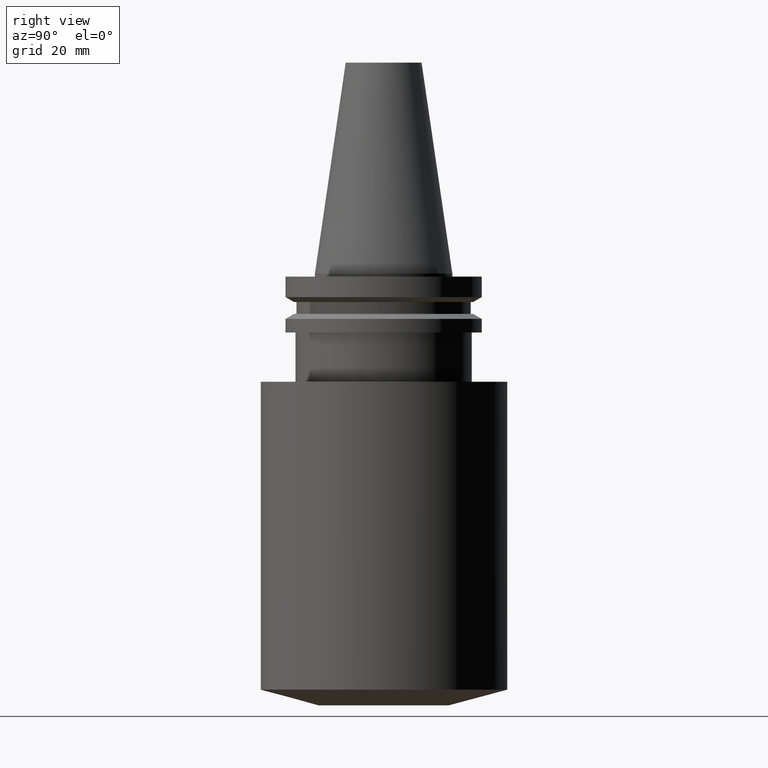
[diagram: clean part render]
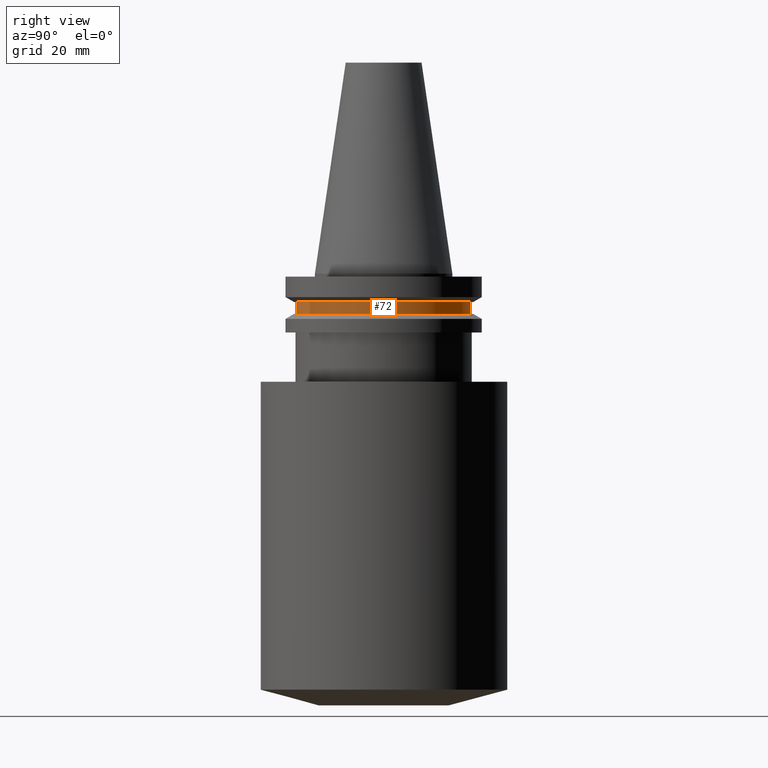
[diagram: same view with one face highlighted and labeled with its STEP entity id]
A machine part, right view. The second image highlights one B-rep face of the part: STEP entity #72.
In plain terms, the highlighted cylindrical surface (bore or boss wall) has radius 28.18 mm, axis along (0, 0, -1).
Its self-contained STEP definition (entity closure, byte-faithful):
#72=ADVANCED_FACE('Unnamed[1]',(#182,#183),#184,.T.);
#88=EDGE_CURVE('Unnamed[1]',#207,#207,#208,.T.);
#121=EDGE_CURVE('Unnamed[1]',#258,#258,#259,.T.);
#182=FACE_BOUND('',#328,.T.);
#183=FACE_BOUND('',#329,.T.);
#184=CYLINDRICAL_SURFACE('',#330,28.18);
#207=VERTEX_POINT('',#360);
#208=CIRCLE('',#361,28.18);
#258=VERTEX_POINT('',#423);
#259=CIRCLE('',#424,28.18);
#328=EDGE_LOOP('',(#492));
#329=EDGE_LOOP('',(#493));
#330=AXIS2_PLACEMENT_3D('',#494,#495,#496);
#360=CARTESIAN_POINT('',(7.98469713044073E-016,28.18,-13.04));
#361=AXIS2_PLACEMENT_3D('',#520,#521,#522);
#423=CARTESIAN_POINT('',(5.63337527607782E-016,28.18,-9.2));
#424=AXIS2_PLACEMENT_3D('',#575,#576,#577);
#492=ORIENTED_EDGE('',*,*,#88,.F.);
#493=ORIENTED_EDGE('',*,*,#121,.T.);
#494=CARTESIAN_POINT('',(6.80903620325929E-016,1.36180724065186E-015,-11.12));
#495=DIRECTION('',(6.12323399573677E-017,1.22464679914735E-016,-1.0));
#496=DIRECTION('',(-1.23259516440783E-032,1.0,1.22464679914735E-016));
#520=CARTESIAN_POINT('',(7.98469713044074E-016,1.59693942608815E-015,-13.04));
#521=DIRECTION('',(6.12323399573677E-017,1.22464679914735E-016,-1.0));
#522=DIRECTION('',(-1.23259516440783E-032,1.0,1.22464679914735E-016));
#575=CARTESIAN_POINT('',(5.63337527607784E-016,1.12667505521557E-015,-9.20000000000002));
#576=DIRECTION('',(6.12323399573677E-017,1.22464679914735E-016,-1.0));
#577=DIRECTION('',(-1.23259516440783E-032,1.0,1.22464679914735E-016));